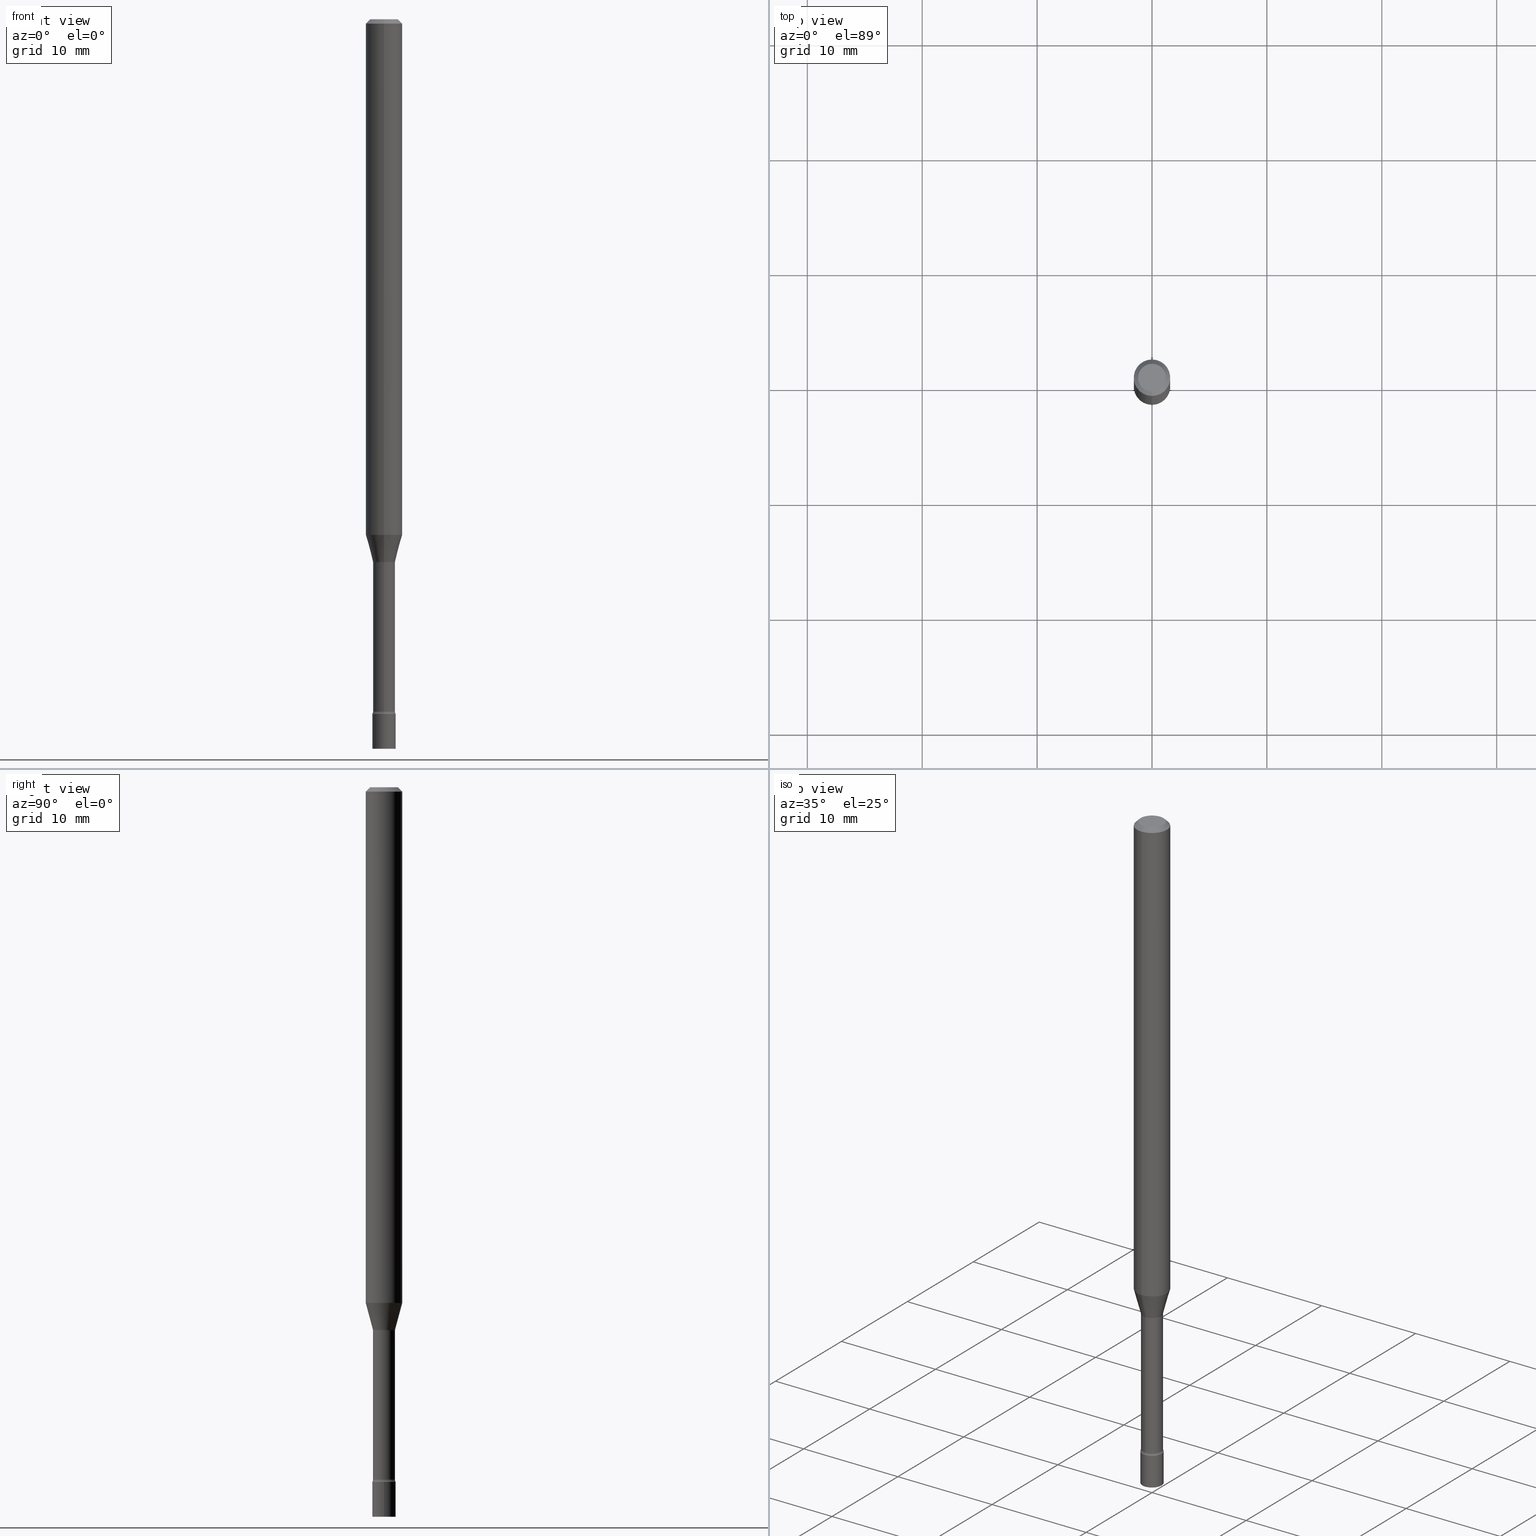
[diagram: canonical four-view strip — front | top / right | iso, engineering-drawing reading convention]
A machine part, canonical four-view strip (front | top / right | iso — engineering-drawing reading convention). The complete STEP part file that produces these views, byte-faithful:
ISO-10303-21;
HEADER;
FILE_DESCRIPTION (( 'STEP AP203' ),
    '1' );
FILE_NAME ('03580.STEP',
    '2024-03-08T21:55:34',
    ( '' ),
    ( '' ),
    'SwSTEP 2.0',
    'SolidWorks 2023',
    '' );
FILE_SCHEMA (( 'CONFIG_CONTROL_DESIGN' ));
ENDSEC;

DATA;
#1 = LINE ( 'NONE', #372, #424 ) ;
#2 = EDGE_LOOP ( 'NONE', ( #496, #222, #340, #302 ) ) ;
#3 = CARTESIAN_POINT ( 'NONE',  ( 2.793185071075117657E-16, 0.03999999999999127864, -2.500000000000000000 ) ) ;
#4 = FACE_OUTER_BOUND ( 'NONE', #57, .T. ) ;
#5 = CIRCLE ( 'NONE', #405, 0.03759999999999999454 ) ;
#6 = APPROVAL_PERSON_ORGANIZATION ( #357, #26, #398 ) ;
#7 = EDGE_CURVE ( 'NONE', #11, #342, #232, .T. ) ;
#8 = ORIENTED_EDGE ( 'NONE', *, *, #13, .T. ) ;
#9 =( NAMED_UNIT ( * ) SI_UNIT ( $, .STERADIAN. ) SOLID_ANGLE_UNIT ( ) );
#10 = LINE ( 'NONE', #103, #482 ) ;
#11 = VERTEX_POINT ( 'NONE', #240 ) ;
#12 = EDGE_LOOP ( 'NONE', ( #263, #463, #186, #416 ) ) ;
#13 = EDGE_CURVE ( 'NONE', #61, #472, #96, .T. ) ;
#14 = CARTESIAN_POINT ( 'NONE',  ( 5.820261104981860964E-29, -8.309660648019649203E-15, -2.379999999999999893 ) ) ;
#15 = VECTOR ( 'NONE', #515, 39.37007874015748143 ) ;
#16 = EDGE_LOOP ( 'NONE', ( #271, #218, #383, #274 ) ) ;
#17 = AXIS2_PLACEMENT_3D ( 'NONE', #3, #206, #364 ) ;
#18 = APPROVAL_STATUS ( 'not_yet_approved' ) ;
#19 = EDGE_CURVE ( 'NONE', #146, #269, #28, .T. ) ;
#20 = ORIENTED_EDGE ( 'NONE', *, *, #233, .T. ) ;
#21 = DIRECTION ( 'NONE',  ( -2.445487859236075809E-29, 3.491454053789768278E-15, 1.000000000000000000 ) ) ;
#22 = VERTEX_POINT ( 'NONE', #112 ) ;
#23 = APPROVAL_ROLE ( '' ) ;
#24 = CARTESIAN_POINT ( 'NONE',  ( 6.113672015462842613E-29, -8.728703347107864943E-15, -2.500000000000000000 ) ) ;
#25 = EDGE_CURVE ( 'NONE', #147, #401, #283, .T. ) ;
#26 = APPROVAL ( #351, 'UNSPECIFIED' ) ;
#27 = PERSON_AND_ORGANIZATION ( #436, #68 ) ;
#28 = CIRCLE ( 'NONE', #390, 0.04000000000000000083 ) ;
#29 = AXIS2_PLACEMENT_3D ( 'NONE', #178, #375, #492 ) ;
#30 = ORIENTED_EDGE ( 'NONE', *, *, #60, .T. ) ;
#31 = CALENDAR_DATE ( 2024, 8, 3 ) ;
#32 = DIRECTION ( 'NONE',  ( -6.982962677686265922E-15, -1.000000000000000000, 3.491454053789768278E-15 ) ) ;
#33 = CARTESIAN_POINT ( 'NONE',  ( 5.820215758720625190E-29, -8.309725586446686731E-15, -2.379999999999999893 ) ) ;
#34 = CYLINDRICAL_SURFACE ( 'NONE', #241, 0.04000000000000000083 ) ;
#35 = PRODUCT_RELATED_PRODUCT_CATEGORY ( 'detail', '', ( #158 ) ) ;
#36 = CARTESIAN_POINT ( 'NONE',  ( 4.321352963174050504E-29, -6.169650470415179361E-15, -1.767071934891535134 ) ) ;
#37 = DATE_TIME_ROLE ( 'classification_date' ) ;
#38 = AXIS2_PLACEMENT_3D ( 'NONE', #414, #459, #418 ) ;
#39 = DIRECTION ( 'NONE',  ( -2.445487859236075809E-29, 3.491454053789768278E-15, 1.000000000000000000 ) ) ;
#40 = AXIS2_PLACEMENT_3D ( 'NONE', #155, #286, #245 ) ;
#41 = CARTESIAN_POINT ( 'NONE',  ( 5.800357778224581997E-29, -8.281244415803181526E-15, -2.371861204020250025 ) ) ;
#42 = DIRECTION ( 'NONE',  ( -2.445487859236075809E-29, 3.491454053789768278E-15, 1.000000000000000000 ) ) ;
#43 = CARTESIAN_POINT ( 'NONE',  ( 4.543942654458362637E-29, -6.487444597681546794E-15, -1.858092501787273143 ) ) ;
#44 = EDGE_CURVE ( 'NONE', #377, #106, #503, .T. ) ;
#45 = ADVANCED_FACE ( 'NONE', ( #156 ), #506, .T. ) ;
#46 = DIRECTION ( 'NONE',  ( 1.000000000000000000, -7.105427357601001070E-15, 4.926315174396549471E-29 ) ) ;
#47 = AXIS2_PLACEMENT_3D ( 'NONE', #404, #335, #203 ) ;
#48 = DIRECTION ( 'NONE',  ( -6.982962677686265922E-15, -1.000000000000000000, 4.370956789862821150E-15 ) ) ;
#49 = DIRECTION ( 'NONE',  ( 6.982962677686265922E-15, 1.000000000000000000, -3.483106191921935554E-15 ) ) ;
#50 = DIRECTION ( 'NONE',  ( -6.982962677686266711E-15, -1.000000000000000000, 0.000000000000000000 ) ) ;
#51 = CARTESIAN_POINT ( 'NONE',  ( 6.113672015462842613E-29, -8.728703347107864943E-15, -2.500000000000000000 ) ) ;
#52 = EDGE_LOOP ( 'NONE', ( #362, #392 ) ) ;
#53 = APPLICATION_PROTOCOL_DEFINITION ( 'international standard', 'config_control_design', 1994, #259 ) ;
#54 = DIRECTION ( 'NONE',  ( -6.982962677686265922E-15, -1.000000000000000000, 3.483106191921935554E-15 ) ) ;
#55 = DIRECTION ( 'NONE',  ( -2.438088387897960049E-29, 3.491481338843145188E-15, 1.000000000000000000 ) ) ;
#56 = LOCAL_TIME ( 16, 55, 34.00000000000000000, #470 ) ;
#57 = EDGE_LOOP ( 'NONE', ( #281, #260, #480, #456 ) ) ;
#58 =( CONVERSION_BASED_UNIT ( 'INCH', #452 ) LENGTH_UNIT ( ) NAMED_UNIT ( #285 ) );
#59 = CARTESIAN_POINT ( 'NONE',  ( 3.574424759935243533E-16, 0.03811111260565749198, -1.858092501787273143 ) ) ;
#60 = EDGE_CURVE ( 'NONE', #313, #11, #190, .T. ) ;
#61 = VERTEX_POINT ( 'NONE', #353 ) ;
#62 = ADVANCED_FACE ( 'NONE', ( #235 ), #277, .F. ) ;
#63 = LINE ( 'NONE', #296, #266 ) ;
#64 = ORIENTED_EDGE ( 'NONE', *, *, #508, .F. ) ;
#65 = DIRECTION ( 'NONE',  ( -6.982962677686265922E-15, -1.000000000000000000, 0.000000000000000000 ) ) ;
#66 = CONICAL_SURFACE ( 'NONE', #276, 0.03811111260566397985, 0.2617993877991495744 ) ;
#67 = EDGE_LOOP ( 'NONE', ( #20, #173 ) ) ;
#68 = ORGANIZATION ( 'UNSPECIFIED', 'UNSPECIFIED', '' ) ;
#69 = APPROVAL_DATE_TIME ( #102, #518 ) ;
#70 = FACE_OUTER_BOUND ( 'NONE', #138, .T. ) ;
#71 = ORIENTED_EDGE ( 'NONE', *, *, #371, .F. ) ;
#72 = PERSON_AND_ORGANIZATION ( #436, #68 ) ;
#73 = ORIENTED_EDGE ( 'NONE', *, *, #212, .T. ) ;
#74 = PERSON_AND_ORGANIZATION_ROLE ( 'design_supplier' ) ;
#75 = DIRECTION ( 'NONE',  ( 1.000000000000000000, -6.982962677686259611E-15, 0.000000000000000000 ) ) ;
#76 = DATE_AND_TIME ( #426, #216 ) ;
#77 = AXIS2_PLACEMENT_3D ( 'NONE', #192, #201, #358 ) ;
#78 = CIRCLE ( 'NONE', #497, 0.03811111260566397985 ) ;
#79 = APPLICATION_CONTEXT ( 'configuration controlled 3d designs of mechanical parts and assemblies' ) ;
#80 = DIRECTION ( 'NONE',  ( -6.982962677686265922E-15, -1.000000000000000000, 3.491454053789768278E-15 ) ) ;
#81 = DIRECTION ( 'NONE',  ( 1.000000000000000000, -6.982962677686259611E-15, 0.000000000000000000 ) ) ;
#82 = UNCERTAINTY_MEASURE_WITH_UNIT (LENGTH_MEASURE( 1.000000000000000082E-05 ), #58, 'distance_accuracy_value', 'NONE');
#83 = EDGE_LOOP ( 'NONE', ( #114, #98 ) ) ;
#84 = AXIS2_PLACEMENT_3D ( 'NONE', #14, #468, #262 ) ;
#85 = DIRECTION ( 'NONE',  ( 2.445487859236075809E-29, -3.491454053789768278E-15, -1.000000000000000000 ) ) ;
#86 = AXIS2_PLACEMENT_3D ( 'NONE', #139, #295, #219 ) ;
#87 = ADVANCED_FACE ( 'NONE', ( #237 ), #34, .T. ) ;
#88 = DIRECTION ( 'NONE',  ( -2.445487859236075809E-29, 3.491454053789768278E-15, 1.000000000000000000 ) ) ;
#89 = EDGE_CURVE ( 'NONE', #159, #122, #197, .T. ) ;
#90 = FACE_OUTER_BOUND ( 'NONE', #12, .T. ) ;
#91 = CIRCLE ( 'NONE', #205, 0.06250000000000000000 ) ;
#92 = AXIS2_PLACEMENT_3D ( 'NONE', #51, #210, #368 ) ;
#93 = DIRECTION ( 'NONE',  ( -2.445487859236075809E-29, 3.491454053789768278E-15, 1.000000000000000000 ) ) ;
#94 = EDGE_CURVE ( 'NONE', #151, #22, #149, .T. ) ;
#95 = CARTESIAN_POINT ( 'NONE',  ( -2.625593966809461641E-16, -0.03760000000000835590, -2.371861204020250025 ) ) ;
#96 = CIRCLE ( 'NONE', #180, 0.03760000000000007780 ) ;
#97 = ORIENTED_EDGE ( 'NONE', *, *, #488, .F. ) ;
#98 = ORIENTED_EDGE ( 'NONE', *, *, #25, .F. ) ;
#99 = PERSON_AND_ORGANIZATION ( #436, #68 ) ;
#100 = CARTESIAN_POINT ( 'NONE',  ( 4.543942654458362637E-29, -6.487444597681546794E-15, -1.858092501787273143 ) ) ;
#101 = ORIENTED_EDGE ( 'NONE', *, *, #60, .F. ) ;
#102 = DATE_AND_TIME ( #306, #198 ) ;
#103 = CARTESIAN_POINT ( 'NONE',  ( -0.04000000000000000083, 2.842170943040400803E-16, -1.967574036101962509E-30 ) ) ;
#104 = CIRCLE ( 'NONE', #38, 0.04749999999999999362 ) ;
#105 = CONICAL_SURFACE ( 'NONE', #225, 0.06250000000000000000, 0.7853981633974483900 ) ;
#106 = VERTEX_POINT ( 'NONE', #204 ) ;
#107 = VECTOR ( 'NONE', #440, 39.37007874015748143 ) ;
#108 = FACE_OUTER_BOUND ( 'NONE', #16, .T. ) ;
#109 = ORIENTED_EDGE ( 'NONE', *, *, #19, .F. ) ;
#110 = DATE_AND_TIME ( #115, #56 ) ;
#111 = CARTESIAN_POINT ( 'NONE',  ( -3.773273898774340269E-16, -0.04749999999999999362, 1.369288605871095774E-16 ) ) ;
#112 = CARTESIAN_POINT ( 'NONE',  ( -2.661284769304047342E-16, -0.03811111260567047465, -1.858092501787273143 ) ) ;
#113 = MANIFOLD_SOLID_BREP ( 'Body-Move/Copy2[1]', #267 ) ;
#114 = ORIENTED_EDGE ( 'NONE', *, *, #395, .F. ) ;
#115 = CALENDAR_DATE ( 2024, 8, 3 ) ;
#116 = AXIS2_PLACEMENT_3D ( 'NONE', #196, #511, #388 ) ;
#117 = CIRCLE ( 'NONE', #29, 0.01500000000000001853 ) ;
#118 = EDGE_LOOP ( 'NONE', ( #238, #256, #135, #109 ) ) ;
#119 = EDGE_CURVE ( 'NONE', #472, #106, #366, .T. ) ;
#120 = APPROVAL_DATE_TIME ( #475, #26 ) ;
#121 = DIRECTION ( 'NONE',  ( -6.982962677686266711E-15, -1.000000000000000000, 0.000000000000000000 ) ) ;
#122 = VERTEX_POINT ( 'NONE', #451 ) ;
#123 = CYLINDRICAL_SURFACE ( 'NONE', #249, 0.06250000000000000000 ) ;
#124 = CARTESIAN_POINT ( 'NONE',  ( 5.820215758720625190E-29, -8.309725586446686731E-15, -2.379999999999999893 ) ) ;
#125 = CYLINDRICAL_SURFACE ( 'NONE', #300, 0.03760000000000003617 ) ;
#126 = TOROIDAL_SURFACE ( 'NONE', #391, 0.05260000000000007031, 0.01499999999999998904 ) ;
#127 = EDGE_CURVE ( 'NONE', #151, #159, #373, .T. ) ;
#128 = ADVANCED_FACE ( 'NONE', ( #255 ), #427, .T. ) ;
#129 = LINE ( 'NONE', #338, #412 ) ;
#130 = CARTESIAN_POINT ( 'NONE',  ( 3.840629472727447874E-16, 0.04749999999999999362, -1.947592745229184119E-16 ) ) ;
#131 = CC_DESIGN_PERSON_AND_ORGANIZATION_ASSIGNMENT ( #72, #435, ( #442 ) ) ;
#132 = CARTESIAN_POINT ( 'NONE',  ( 5.800357778224581997E-29, -8.281244415803181526E-15, -2.371861204020250025 ) ) ;
#133 = AXIS2_PLACEMENT_3D ( 'NONE', #137, #21, #185 ) ;
#134 = CARTESIAN_POINT ( 'NONE',  ( 2.671640686457979269E-16, 0.03760000000000003617, -1.312786724224954295E-16 ) ) ;
#135 = ORIENTED_EDGE ( 'NONE', *, *, #415, .T. ) ;
#136 = DIRECTION ( 'NONE',  ( 1.000000000000000000, -6.982962677686259611E-15, 0.000000000000000000 ) ) ;
#137 = CARTESIAN_POINT ( 'NONE',  ( 0.000000000000000000, 0.000000000000000000, 0.000000000000000000 ) ) ;
#138 = EDGE_LOOP ( 'NONE', ( #363, #184, #348, #101 ) ) ;
#139 = CARTESIAN_POINT ( 'NONE',  ( 4.321352963174050504E-29, -6.169650470415179361E-15, -1.767071934891535134 ) ) ;
#140 = FACE_OUTER_BOUND ( 'NONE', #379, .T. ) ;
#141 = DIRECTION ( 'NONE',  ( 1.839019923739595582E-15, 0.2588190451025242922, 0.9659258262890673130 ) ) ;
#142 =( GEOMETRIC_REPRESENTATION_CONTEXT ( 3 ) GLOBAL_UNCERTAINTY_ASSIGNED_CONTEXT ( ( #82 ) ) GLOBAL_UNIT_ASSIGNED_CONTEXT ( ( #58, #461, #9 ) ) REPRESENTATION_CONTEXT ( 'NONE', 'WORKASPACE' ) );
#143 = CC_DESIGN_SECURITY_CLASSIFICATION ( #442, ( #334 ) ) ;
#144 = ORIENTED_EDGE ( 'NONE', *, *, #458, .F. ) ;
#145 = PERSON_AND_ORGANIZATION ( #436, #68 ) ;
#146 = VERTEX_POINT ( 'NONE', #307 ) ;
#147 = VERTEX_POINT ( 'NONE', #258 ) ;
#148 = DIRECTION ( 'NONE',  ( 7.105427357601001859E-15, 1.000000000000000000, 0.000000000000000000 ) ) ;
#149 = CIRCLE ( 'NONE', #318, 0.03811111260566397985 ) ;
#150 = CC_DESIGN_APPROVAL ( #26, ( #334 ) ) ;
#151 = VERTEX_POINT ( 'NONE', #59 ) ;
#152 = CARTESIAN_POINT ( 'NONE',  ( 0.000000000000000000, 0.000000000000000000, 0.000000000000000000 ) ) ;
#153 = EDGE_CURVE ( 'NONE', #297, #380, #5, .T. ) ;
#154 = DIRECTION ( 'NONE',  ( -2.445468806185136597E-29, 3.491481338843145583E-15, 1.000000000000000000 ) ) ;
#155 = CARTESIAN_POINT ( 'NONE',  ( 3.316907271900976096E-16, 0.04749999999999999362, -1.803016710389662094E-16 ) ) ;
#156 = FACE_OUTER_BOUND ( 'NONE', #2, .T. ) ;
#157 = ORIENTED_EDGE ( 'NONE', *, *, #89, .T. ) ;
#158 = PRODUCT ( '03580', '03580', '', ( #257 ) ) ;
#159 = VERTEX_POINT ( 'NONE', #376 ) ;
#160 = EDGE_CURVE ( 'NONE', #147, #146, #10, .T. ) ;
#161 = DIRECTION ( 'NONE',  ( -2.445487859236075809E-29, 3.491454053789768278E-15, 1.000000000000000000 ) ) ;
#162 = PRODUCT_DEFINITION_SHAPE ( 'NONE', 'NONE',  #326 ) ;
#163 = CARTESIAN_POINT ( 'NONE',  ( 2.707957421369426539E-16, 0.03811111260565749198, -1.858092501787273143 ) ) ;
#164 = DIRECTION ( 'NONE',  ( -2.445487859236075809E-29, 3.491454053789768278E-15, 1.000000000000000000 ) ) ;
#165 = CARTESIAN_POINT ( 'NONE',  ( 7.071178758730867700E-46, -1.009561165842601040E-31, -2.891520696790443572E-17 ) ) ;
#166 = DIRECTION ( 'NONE',  ( -2.445487859236075809E-29, 3.491454053789768278E-15, 1.000000000000000000 ) ) ;
#167 = CYLINDRICAL_SURFACE ( 'NONE', #47, 0.03760000000000003617 ) ;
#168 = TOROIDAL_SURFACE ( 'NONE', #361, 0.05260000000000000092, 0.01500000000000002373 ) ;
#169 = AXIS2_PLACEMENT_3D ( 'NONE', #323, #229, #121 ) ;
#170 = EDGE_CURVE ( 'NONE', #342, #11, #91, .T. ) ;
#171 = PERSON_AND_ORGANIZATION_ROLE ( 'design_owner' ) ;
#172 = DIRECTION ( 'NONE',  ( -6.982962677686266711E-15, -1.000000000000000000, 0.000000000000000000 ) ) ;
#173 = ORIENTED_EDGE ( 'NONE', *, *, #278, .T. ) ;
#174 = EDGE_CURVE ( 'NONE', #106, #377, #360, .T. ) ;
#175 = DIRECTION ( 'NONE',  ( 1.000000000000000000, 0.000000000000000000, 0.000000000000000000 ) ) ;
#176 = CARTESIAN_POINT ( 'NONE',  ( 4.440892098500625669E-16, 0.06250000000000000000, -2.182158783618605173E-16 ) ) ;
#177 = ORIENTED_EDGE ( 'NONE', *, *, #453, .T. ) ;
#178 = CARTESIAN_POINT ( 'NONE',  ( -3.673038368462520569E-16, -0.05260000000000650267, -1.861974787463810843 ) ) ;
#179 = CARTESIAN_POINT ( 'NONE',  ( 3.668231788854121000E-31, -5.237181080684662746E-17, -0.01500000000000003067 ) ) ;
#180 = AXIS2_PLACEMENT_3D ( 'NONE', #41, #324, #431 ) ;
#181 = CIRCLE ( 'NONE', #400, 0.01500000000000001853 ) ;
#182 = ORIENTED_EDGE ( 'NONE', *, *, #308, .F. ) ;
#183 = APPROVAL_ROLE ( '' ) ;
#184 = ORIENTED_EDGE ( 'NONE', *, *, #479, .T. ) ;
#185 = DIRECTION ( 'NONE',  ( -6.982962677686265922E-15, -1.000000000000000000, 3.491454053789768278E-15 ) ) ;
#186 = ORIENTED_EDGE ( 'NONE', *, *, #448, .F. ) ;
#187 = CARTESIAN_POINT ( 'NONE',  ( 4.553401260645949734E-29, -6.501050223826328957E-15, -1.861974787463811065 ) ) ;
#188 = AXIS2_PLACEMENT_3D ( 'NONE', #33, #55, #211 ) ;
#189 = CIRCLE ( 'NONE', #520, 0.03759999999999999454 ) ;
#190 = LINE ( 'NONE', #476, #15 ) ;
#191 = CC_DESIGN_DATE_AND_TIME_ASSIGNMENT ( #438, #37, ( #442 ) ) ;
#192 = CARTESIAN_POINT ( 'NONE',  ( 5.820261104981860964E-29, -8.309660648019649203E-15, -2.379999999999999893 ) ) ;
#193 = ADVANCED_FACE ( 'NONE', ( #70 ), #447, .T. ) ;
#194 = DIRECTION ( 'NONE',  ( -2.445468806185136597E-29, 3.491481338843145583E-15, 1.000000000000000000 ) ) ;
#195 = PLANE ( 'NONE',  #40 ) ;
#196 = CARTESIAN_POINT ( 'NONE',  ( 3.668231788854121000E-31, -5.237181080684662746E-17, -0.01500000000000003067 ) ) ;
#197 = CIRCLE ( 'NONE', #519, 0.06250000000000000000 ) ;
#198 = LOCAL_TIME ( 16, 55, 34.00000000000000000, #347 ) ;
#199 = ADVANCED_FACE ( 'NONE', ( #108 ), #66, .T. ) ;
#200 = EDGE_CURVE ( 'NONE', #159, #11, #339, .T. ) ;
#201 = DIRECTION ( 'NONE',  ( -2.445487859236075809E-29, 3.491454053789768278E-15, 1.000000000000000000 ) ) ;
#202 = CARTESIAN_POINT ( 'NONE',  ( 2.842170943040982095E-16, 0.03999999999999168804, -2.380000000000000338 ) ) ;
#203 = DIRECTION ( 'NONE',  ( -6.982962677686267499E-15, -1.000000000000000000, 3.491454053789768672E-15 ) ) ;
#204 = CARTESIAN_POINT ( 'NONE',  ( -2.793185071073924012E-16, -0.04000000000000829975, -2.379999999999999893 ) ) ;
#205 = AXIS2_PLACEMENT_3D ( 'NONE', #179, #378, #54 ) ;
#206 = DIRECTION ( 'NONE',  ( 2.438088387897960049E-29, -3.491481338843145188E-15, -1.000000000000000000 ) ) ;
#207 = APPROVAL_PERSON_ORGANIZATION ( #99, #518, #183 ) ;
#208 = DIRECTION ( 'NONE',  ( -6.982962677686267499E-15, -1.000000000000000000, 3.491454053789768672E-15 ) ) ;
#209 = ADVANCED_FACE ( 'NONE', ( #140 ), #493, .T. ) ;
#210 = DIRECTION ( 'NONE',  ( -2.445468806185136597E-29, 3.491481338843145583E-15, 1.000000000000000000 ) ) ;
#211 = DIRECTION ( 'NONE',  ( 1.000000000000000000, -6.982962677686265922E-15, 4.876176775795935793E-29 ) ) ;
#212 = EDGE_CURVE ( 'NONE', #61, #377, #512, .T. ) ;
#213 = ORIENTED_EDGE ( 'NONE', *, *, #94, .F. ) ;
#214 = DIRECTION ( 'NONE',  ( -2.445468806185136877E-29, 3.491481338843145188E-15, 1.000000000000000000 ) ) ;
#215 = AXIS2_PLACEMENT_3D ( 'NONE', #24, #154, #81 ) ;
#216 = LOCAL_TIME ( 16, 55, 34.00000000000000000, #236 ) ;
#217 = EDGE_CURVE ( 'NONE', #22, #122, #63, .T. ) ;
#218 = ORIENTED_EDGE ( 'NONE', *, *, #94, .T. ) ;
#219 = DIRECTION ( 'NONE',  ( -6.982962677686265922E-15, -1.000000000000000000, 4.370956789862821150E-15 ) ) ;
#220 = CARTESIAN_POINT ( 'NONE',  ( 4.553436736946422852E-29, -6.500999419744866443E-15, -1.861974787463811065 ) ) ;
#221 = EDGE_LOOP ( 'NONE', ( #355, #73, #469, #465 ) ) ;
#222 = ORIENTED_EDGE ( 'NONE', *, *, #160, .T. ) ;
#223 = DIRECTION ( 'NONE',  ( 6.982962677686265922E-15, 1.000000000000000000, -3.483106191921935554E-15 ) ) ;
#224 = VECTOR ( 'NONE', #341, 39.37007874015748143 ) ;
#225 = AXIS2_PLACEMENT_3D ( 'NONE', #402, #85, #49 ) ;
#226 = ORIENTED_EDGE ( 'NONE', *, *, #217, .F. ) ;
#227 = CARTESIAN_POINT ( 'NONE',  ( -4.287811248607203282E-16, -0.06250000000000005551, -0.01499999999999981209 ) ) ;
#228 = ORIENTED_EDGE ( 'NONE', *, *, #479, .F. ) ;
#229 = DIRECTION ( 'NONE',  ( -2.445487859236075809E-29, 3.491454053789768278E-15, 1.000000000000000000 ) ) ;
#230 = ORIENTED_EDGE ( 'NONE', *, *, #19, .T. ) ;
#231 = SHAPE_DEFINITION_REPRESENTATION ( #162, #346 ) ;
#232 = CIRCLE ( 'NONE', #116, 0.06250000000000000000 ) ;
#233 = EDGE_CURVE ( 'NONE', #313, #252, #104, .T. ) ;
#234 = AXIS2_PLACEMENT_3D ( 'NONE', #303, #499, #136 ) ;
#235 = FACE_OUTER_BOUND ( 'NONE', #52, .T. ) ;
#236 = COORDINATED_UNIVERSAL_TIME_OFFSET ( 5, 0, .BEHIND. ) ;
#237 = FACE_OUTER_BOUND ( 'NONE', #118, .T. ) ;
#238 = ORIENTED_EDGE ( 'NONE', *, *, #160, .F. ) ;
#239 = PERSON_AND_ORGANIZATION_ROLE ( 'creator' ) ;
#240 = CARTESIAN_POINT ( 'NONE',  ( 4.440892098501060035E-16, 0.06249999999999995143, -0.01500000000000024751 ) ) ;
#241 = AXIS2_PLACEMENT_3D ( 'NONE', #279, #194, #396 ) ;
#242 = TOROIDAL_SURFACE ( 'NONE', #291, 0.05260000000000000092, 0.01500000000000002373 ) ;
#243 = ADVANCED_FACE ( 'NONE', ( #473 ), #168, .F. ) ;
#244 = PLANE ( 'NONE',  #17 ) ;
#245 = DIRECTION ( 'NONE',  ( 6.982962677686265922E-15, 1.000000000000000000, -3.491454053789768278E-15 ) ) ;
#246 = ADVANCED_FACE ( 'NONE', ( #275 ), #483, .T. ) ;
#247 = CARTESIAN_POINT ( 'NONE',  ( -2.625593966809580464E-16, -0.03760000000000649628, -1.861974787463811065 ) ) ;
#248 = DIRECTION ( 'NONE',  ( 7.105427357601001859E-15, 1.000000000000000000, 0.000000000000000000 ) ) ;
#249 = AXIS2_PLACEMENT_3D ( 'NONE', #370, #166, #330 ) ;
#250 = DIRECTION ( 'NONE',  ( -2.445487859236075809E-29, 3.491454053789768278E-15, 1.000000000000000000 ) ) ;
#251 = CARTESIAN_POINT ( 'NONE',  ( 0.000000000000000000, 0.000000000000000000, 0.000000000000000000 ) ) ;
#252 = VERTEX_POINT ( 'NONE', #111 ) ;
#253 = LINE ( 'NONE', #134, #367 ) ;
#254 = AXIS2_PLACEMENT_3D ( 'NONE', #165, #161, #288 ) ;
#255 = FACE_OUTER_BOUND ( 'NONE', #345, .T. ) ;
#256 = ORIENTED_EDGE ( 'NONE', *, *, #25, .T. ) ;
#257 = MECHANICAL_CONTEXT ( 'NONE', #79, 'mechanical' ) ;
#258 = CARTESIAN_POINT ( 'NONE',  ( -0.04000000000000000083, -8.234997372473236299E-15, -2.500000000000000000 ) ) ;
#259 = APPLICATION_CONTEXT ( 'configuration controlled 3d designs of mechanical parts and assemblies' ) ;
#260 = ORIENTED_EDGE ( 'NONE', *, *, #304, .F. ) ;
#261 = LINE ( 'NONE', #227, #344 ) ;
#262 = DIRECTION ( 'NONE',  ( -6.982962677686265922E-15, -1.000000000000000000, 6.829619984160658243E-15 ) ) ;
#263 = ORIENTED_EDGE ( 'NONE', *, *, #304, .T. ) ;
#264 = CARTESIAN_POINT ( 'NONE',  ( 4.553401260645949734E-29, -6.501050223826328957E-15, -1.861974787463811065 ) ) ;
#265 = DIRECTION ( 'NONE',  ( -2.445468806185136877E-29, 3.491481338843145188E-15, 1.000000000000000000 ) ) ;
#266 = VECTOR ( 'NONE', #455, 39.37007874015748854 ) ;
#267 = CLOSED_SHELL ( 'NONE', ( #45, #128, #87, #356 ) ) ;
#268 = TOROIDAL_SURFACE ( 'NONE', #319, 0.05260000000000007031, 0.01499999999999998904 ) ;
#269 = VERTEX_POINT ( 'NONE', #272 ) ;
#270 = ADVANCED_FACE ( 'NONE', ( #429 ), #195, .F. ) ;
#271 = ORIENTED_EDGE ( 'NONE', *, *, #127, .F. ) ;
#272 = CARTESIAN_POINT ( 'NONE',  ( 0.04000000000000000083, -8.589044093554136769E-15, -2.379999999999999893 ) ) ;
#273 = ADVANCED_FACE ( 'NONE', ( #485 ), #105, .T. ) ;
#274 = ORIENTED_EDGE ( 'NONE', *, *, #89, .F. ) ;
#275 = FACE_OUTER_BOUND ( 'NONE', #419, .T. ) ;
#276 = AXIS2_PLACEMENT_3D ( 'NONE', #100, #299, #172 ) ;
#277 = PLANE ( 'NONE',  #433 ) ;
#278 = EDGE_CURVE ( 'NONE', #252, #313, #467, .T. ) ;
#279 = CARTESIAN_POINT ( 'NONE',  ( 0.000000000000000000, 0.000000000000000000, 0.000000000000000000 ) ) ;
#280 = CC_DESIGN_PERSON_AND_ORGANIZATION_ASSIGNMENT ( #310, #74, ( #334 ) ) ;
#281 = ORIENTED_EDGE ( 'NONE', *, *, #212, .F. ) ;
#282 = CARTESIAN_POINT ( 'NONE',  ( -4.364351673553912750E-16, -0.06250000000000005551, -0.01499999999999981209 ) ) ;
#283 = CIRCLE ( 'NONE', #215, 0.04000000000000000083 ) ;
#284 = APPROVAL_PERSON_ORGANIZATION ( #387, #430, #23 ) ;
#285 = DIMENSIONAL_EXPONENTS ( 1.000000000000000000, 0.000000000000000000, 0.000000000000000000, 0.000000000000000000, 0.000000000000000000, 0.000000000000000000, 0.000000000000000000 ) ;
#286 = DIRECTION ( 'NONE',  ( 2.445487859236075529E-29, -3.491454053789768278E-15, -1.000000000000000000 ) ) ;
#287 = MANIFOLD_SOLID_BREP ( 'Body-Move/Copy2[2]', #466 ) ;
#288 = DIRECTION ( 'NONE',  ( -6.982962677686266711E-15, -1.000000000000000000, 3.491454053789768672E-15 ) ) ;
#289 = CARTESIAN_POINT ( 'NONE',  ( 4.543942654458362637E-29, -6.487444597681546794E-15, -1.858092501787273143 ) ) ;
#290 = FACE_OUTER_BOUND ( 'NONE', #221, .T. ) ;
#291 = AXIS2_PLACEMENT_3D ( 'NONE', #264, #298, #384 ) ;
#292 = PERSON_AND_ORGANIZATION ( #436, #68 ) ;
#293 = ADVANCED_FACE ( 'NONE', ( #90 ), #125, .T. ) ;
#294 = ORIENTED_EDGE ( 'NONE', *, *, #200, .T. ) ;
#295 = DIRECTION ( 'NONE',  ( -2.445487859236075809E-29, 3.491454053789768278E-15, 1.000000000000000000 ) ) ;
#296 = CARTESIAN_POINT ( 'NONE',  ( -2.661284769304047342E-16, -0.03811111260567047465, -1.858092501787273143 ) ) ;
#297 = VERTEX_POINT ( 'NONE', #517 ) ;
#298 = DIRECTION ( 'NONE',  ( -2.445487859236075809E-29, 3.491454053789768278E-15, 1.000000000000000000 ) ) ;
#299 = DIRECTION ( 'NONE',  ( -2.445487859236075809E-29, 3.491454053789768278E-15, 1.000000000000000000 ) ) ;
#300 = AXIS2_PLACEMENT_3D ( 'NONE', #251, #93, #208 ) ;
#301 = ADVANCED_FACE ( 'NONE', ( #408 ), #123, .T. ) ;
#302 = ORIENTED_EDGE ( 'NONE', *, *, #415, .F. ) ;
#303 = CARTESIAN_POINT ( 'NONE',  ( 5.820215758720625190E-29, -8.309725586446686731E-15, -2.379999999999999893 ) ) ;
#304 = EDGE_CURVE ( 'NONE', #472, #61, #406, .T. ) ;
#305 = ORIENTED_EDGE ( 'NONE', *, *, #308, .T. ) ;
#306 = CALENDAR_DATE ( 2024, 8, 3 ) ;
#307 = CARTESIAN_POINT ( 'NONE',  ( -0.04000000000000000083, -8.234997372473236299E-15, -2.379999999999999893 ) ) ;
#308 = EDGE_CURVE ( 'NONE', #151, #297, #181, .T. ) ;
#309 = ORIENTED_EDGE ( 'NONE', *, *, #7, .F. ) ;
#310 = PERSON_AND_ORGANIZATION ( #436, #68 ) ;
#311 = AXIS2_PLACEMENT_3D ( 'NONE', #152, #320, #315 ) ;
#312 = LOCAL_TIME ( 16, 55, 34.00000000000000000, #510 ) ;
#313 = VERTEX_POINT ( 'NONE', #130 ) ;
#314 = COORDINATED_UNIVERSAL_TIME_OFFSET ( 5, 0, .BEHIND. ) ;
#315 = DIRECTION ( 'NONE',  ( 1.000000000000000000, -6.982962677686265922E-15, 4.876176775795935793E-29 ) ) ;
#316 = CALENDAR_DATE ( 2024, 8, 3 ) ;
#317 = ORIENTED_EDGE ( 'NONE', *, *, #7, .T. ) ;
#318 = AXIS2_PLACEMENT_3D ( 'NONE', #289, #250, #50 ) ;
#319 = AXIS2_PLACEMENT_3D ( 'NONE', #450, #365, #446 ) ;
#320 = DIRECTION ( 'NONE',  ( -2.445468806185136597E-29, 3.491481338843145583E-15, 1.000000000000000000 ) ) ;
#321 = CC_DESIGN_APPROVAL ( #430, ( #442 ) ) ;
#322 = DIRECTION ( 'NONE',  ( -2.445468806185136597E-29, 3.491481338843145583E-15, 1.000000000000000000 ) ) ;
#323 = CARTESIAN_POINT ( 'NONE',  ( 4.543942654458362637E-29, -6.487444597681546794E-15, -1.858092501787273143 ) ) ;
#324 = DIRECTION ( 'NONE',  ( -2.445487859236075809E-29, 3.491454053789768278E-15, 1.000000000000000000 ) ) ;
#325 = DIRECTION ( 'NONE',  ( -6.982962677686266711E-15, -1.000000000000000000, 0.000000000000000000 ) ) ;
#326 = PRODUCT_DEFINITION ( 'UNKNOWN', '', #334, #333 ) ;
#327 = CIRCLE ( 'NONE', #86, 0.06250000000000000000 ) ;
#328 = CARTESIAN_POINT ( 'NONE',  ( -2.625593966810038989E-16, -0.03760000000000003617, 1.312786724224954295E-16 ) ) ;
#329 = ADVANCED_FACE ( 'NONE', ( #407 ), #167, .T. ) ;
#330 = DIRECTION ( 'NONE',  ( -6.982962677686265922E-15, -1.000000000000000000, 3.491454053789768278E-15 ) ) ;
#331 = CARTESIAN_POINT ( 'NONE',  ( -3.673038368462400761E-16, -0.05260000000000834841, -2.371861204020249581 ) ) ;
#332 = LINE ( 'NONE', #328, #107 ) ;
#333 = DESIGN_CONTEXT ( 'detailed design', #259, 'design' ) ;
#334 = PRODUCT_DEFINITION_FORMATION_WITH_SPECIFIED_SOURCE ( 'ANY', '', #158, .NOT_KNOWN. ) ;
#335 = DIRECTION ( 'NONE',  ( -2.445487859236075809E-29, 3.491454053789768278E-15, 1.000000000000000000 ) ) ;
#336 = AXIS2_PLACEMENT_3D ( 'NONE', #132, #443, #403 ) ;
#337 = ORIENTED_EDGE ( 'NONE', *, *, #200, .F. ) ;
#338 = CARTESIAN_POINT ( 'NONE',  ( 0.04000000000000000083, -2.793185071074506290E-16, 1.950470710318374387E-30 ) ) ;
#339 = LINE ( 'NONE', #176, #224 ) ;
#340 = ORIENTED_EDGE ( 'NONE', *, *, #453, .F. ) ;
#341 = DIRECTION ( 'NONE',  ( -2.445487859236075809E-29, 3.491454053789768278E-15, 1.000000000000000000 ) ) ;
#342 = VERTEX_POINT ( 'NONE', #282 ) ;
#343 = CARTESIAN_POINT ( 'NONE',  ( 3.668231788854121000E-31, -5.237181080684662746E-17, -0.01500000000000003067 ) ) ;
#344 = VECTOR ( 'NONE', #420, 39.37007874015748143 ) ;
#345 = EDGE_LOOP ( 'NONE', ( #177, #230 ) ) ;
#346 = ADVANCED_BREP_SHAPE_REPRESENTATION ( '03580', ( #113, #287, #449 ), #142 ) ;
#347 = COORDINATED_UNIVERSAL_TIME_OFFSET ( 5, 0, .BEHIND. ) ;
#348 = ORIENTED_EDGE ( 'NONE', *, *, #170, .T. ) ;
#349 = CARTESIAN_POINT ( 'NONE',  ( 3.737454790098710800E-16, 0.05259999999999178527, -2.371861204020250025 ) ) ;
#350 = ORIENTED_EDGE ( 'NONE', *, *, #397, .F. ) ;
#351 = APPROVAL_STATUS ( 'not_yet_approved' ) ;
#352 = VECTOR ( 'NONE', #141, 39.37007874015748854 ) ;
#353 = CARTESIAN_POINT ( 'NONE',  ( 2.756905814749771574E-16, 0.03759999999999179970, -2.371861204020250025 ) ) ;
#354 = APPROVAL_DATE_TIME ( #110, #430 ) ;
#355 = ORIENTED_EDGE ( 'NONE', *, *, #13, .F. ) ;
#356 = ADVANCED_FACE ( 'NONE', ( #444 ), #244, .T. ) ;
#357 = PERSON_AND_ORGANIZATION ( #436, #68 ) ;
#358 = DIRECTION ( 'NONE',  ( -6.982962677686265922E-15, -1.000000000000000000, 6.829619984160658243E-15 ) ) ;
#359 = EDGE_CURVE ( 'NONE', #472, #380, #332, .T. ) ;
#360 = CIRCLE ( 'NONE', #84, 0.04000000000000000083 ) ;
#361 = AXIS2_PLACEMENT_3D ( 'NONE', #187, #39, #32 ) ;
#362 = ORIENTED_EDGE ( 'NONE', *, *, #174, .F. ) ;
#363 = ORIENTED_EDGE ( 'NONE', *, *, #278, .F. ) ;
#364 = DIRECTION ( 'NONE',  ( -1.000000000000000000, 6.982962677686265922E-15, -4.876176775795935793E-29 ) ) ;
#365 = DIRECTION ( 'NONE',  ( -2.445487859236075809E-29, 3.491454053789768278E-15, 1.000000000000000000 ) ) ;
#366 = CIRCLE ( 'NONE', #411, 0.01499999999999998557 ) ;
#367 = VECTOR ( 'NONE', #413, 39.37007874015748143 ) ;
#368 = DIRECTION ( 'NONE',  ( 1.000000000000000000, -6.982962677686259611E-15, 0.000000000000000000 ) ) ;
#369 = ORIENTED_EDGE ( 'NONE', *, *, #458, .T. ) ;
#370 = CARTESIAN_POINT ( 'NONE',  ( 0.000000000000000000, 0.000000000000000000, 0.000000000000000000 ) ) ;
#371 = EDGE_CURVE ( 'NONE', #22, #151, #78, .T. ) ;
#372 = CARTESIAN_POINT ( 'NONE',  ( -4.364351673553916201E-16, -0.06250000000000000000, 2.182158783618605173E-16 ) ) ;
#373 = LINE ( 'NONE', #163, #352 ) ;
#374 = CIRCLE ( 'NONE', #234, 0.04000000000000000083 ) ;
#375 = DIRECTION ( 'NONE',  ( -1.000000000000000000, 6.982962677686265922E-15, -4.883557194083112340E-29 ) ) ;
#376 = CARTESIAN_POINT ( 'NONE',  ( 4.440892098501054119E-16, 0.06249999999999378969, -1.767071934891535356 ) ) ;
#377 = VERTEX_POINT ( 'NONE', #202 ) ;
#378 = DIRECTION ( 'NONE',  ( -2.445487859236075809E-29, 3.491454053789768278E-15, 1.000000000000000000 ) ) ;
#379 = EDGE_LOOP ( 'NONE', ( #337, #157, #509, #309 ) ) ;
#380 = VERTEX_POINT ( 'NONE', #247 ) ;
#381 = CARTESIAN_POINT ( 'NONE',  ( 0.000000000000000000, 0.000000000000000000, 0.000000000000000000 ) ) ;
#382 = AXIS2_PLACEMENT_3D ( 'NONE', #343, #421, #223 ) ;
#383 = ORIENTED_EDGE ( 'NONE', *, *, #217, .T. ) ;
#384 = DIRECTION ( 'NONE',  ( -6.982962677686265922E-15, -1.000000000000000000, 3.491454053789768278E-15 ) ) ;
#385 = CC_DESIGN_PERSON_AND_ORGANIZATION_ASSIGNMENT ( #145, #171, ( #158 ) ) ;
#386 = ORIENTED_EDGE ( 'NONE', *, *, #153, .F. ) ;
#387 = PERSON_AND_ORGANIZATION ( #436, #68 ) ;
#388 = DIRECTION ( 'NONE',  ( -6.982962677686265922E-15, -1.000000000000000000, 3.483106191921935554E-15 ) ) ;
#389 = ADVANCED_FACE ( 'NONE', ( #290 ), #268, .F. ) ;
#390 = AXIS2_PLACEMENT_3D ( 'NONE', #124, #322, #75 ) ;
#391 = AXIS2_PLACEMENT_3D ( 'NONE', #481, #164, #484 ) ;
#392 = ORIENTED_EDGE ( 'NONE', *, *, #44, .F. ) ;
#393 = DATE_TIME_ROLE ( 'creation_date' ) ;
#394 = CARTESIAN_POINT ( 'NONE',  ( 2.793185071075088075E-16, 0.03999999999999169498, -2.380000000000000338 ) ) ;
#395 = EDGE_CURVE ( 'NONE', #401, #147, #513, .T. ) ;
#396 = DIRECTION ( 'NONE',  ( 1.000000000000000000, -6.982962677686265922E-15, 4.876176775795935793E-29 ) ) ;
#397 = EDGE_CURVE ( 'NONE', #122, #342, #1, .T. ) ;
#398 = APPROVAL_ROLE ( '' ) ;
#399 = ADVANCED_FACE ( 'NONE', ( #4 ), #126, .F. ) ;
#400 = AXIS2_PLACEMENT_3D ( 'NONE', #487, #46, #248 ) ;
#401 = VERTEX_POINT ( 'NONE', #516 ) ;
#402 = CARTESIAN_POINT ( 'NONE',  ( 3.668231788854121000E-31, -5.237181080684662746E-17, -0.01500000000000003067 ) ) ;
#403 = DIRECTION ( 'NONE',  ( -6.982962677686265922E-15, -1.000000000000000000, 0.000000000000000000 ) ) ;
#404 = CARTESIAN_POINT ( 'NONE',  ( 0.000000000000000000, 0.000000000000000000, 0.000000000000000000 ) ) ;
#405 = AXIS2_PLACEMENT_3D ( 'NONE', #220, #495, #462 ) ;
#406 = CIRCLE ( 'NONE', #336, 0.03760000000000007780 ) ;
#407 = FACE_OUTER_BOUND ( 'NONE', #409, .T. ) ;
#408 = FACE_OUTER_BOUND ( 'NONE', #474, .T. ) ;
#409 = EDGE_LOOP ( 'NONE', ( #64, #8, #502, #386 ) ) ;
#410 = APPLICATION_PROTOCOL_DEFINITION ( 'international standard', 'config_control_design', 1994, #79 ) ;
#411 = AXIS2_PLACEMENT_3D ( 'NONE', #331, #445, #489 ) ;
#412 = VECTOR ( 'NONE', #214, 39.37007874015748143 ) ;
#413 = DIRECTION ( 'NONE',  ( -2.445487859236075809E-29, 3.491454053789768278E-15, 1.000000000000000000 ) ) ;
#414 = CARTESIAN_POINT ( 'NONE',  ( 7.071178758730867700E-46, -1.009561165842601040E-31, -2.891520696790443572E-17 ) ) ;
#415 = EDGE_CURVE ( 'NONE', #401, #269, #129, .T. ) ;
#416 = ORIENTED_EDGE ( 'NONE', *, *, #359, .F. ) ;
#417 = DIRECTION ( 'NONE',  ( 0.000000000000000000, 0.000000000000000000, 1.000000000000000000 ) ) ;
#418 = DIRECTION ( 'NONE',  ( -6.982962677686266711E-15, -1.000000000000000000, 3.491454053789768672E-15 ) ) ;
#419 = EDGE_LOOP ( 'NONE', ( #460, #425, #97, #226 ) ) ;
#420 = DIRECTION ( 'NONE',  ( -4.851104656540964275E-15, -0.7071067811865500152, -0.7071067811865450192 ) ) ;
#421 = DIRECTION ( 'NONE',  ( 2.445487859236075809E-29, -3.491454053789768278E-15, -1.000000000000000000 ) ) ;
#422 = ORIENTED_EDGE ( 'NONE', *, *, #233, .F. ) ;
#423 = AXIS2_PLACEMENT_3D ( 'NONE', #349, #501, #148 ) ;
#424 = VECTOR ( 'NONE', #88, 39.37007874015748143 ) ;
#425 = ORIENTED_EDGE ( 'NONE', *, *, #127, .T. ) ;
#426 = CALENDAR_DATE ( 2024, 8, 3 ) ;
#427 = PLANE ( 'NONE',  #188 ) ;
#428 = ORIENTED_EDGE ( 'NONE', *, *, #488, .T. ) ;
#429 = FACE_OUTER_BOUND ( 'NONE', #67, .T. ) ;
#430 = APPROVAL ( #432, 'UNSPECIFIED' ) ;
#431 = DIRECTION ( 'NONE',  ( -6.982962677686265922E-15, -1.000000000000000000, 0.000000000000000000 ) ) ;
#432 = APPROVAL_STATUS ( 'not_yet_approved' ) ;
#433 = AXIS2_PLACEMENT_3D ( 'NONE', #394, #434, #80 ) ;
#434 = DIRECTION ( 'NONE',  ( -2.445487859236075529E-29, 3.491454053789768278E-15, 1.000000000000000000 ) ) ;
#435 = PERSON_AND_ORGANIZATION_ROLE ( 'classification_officer' ) ;
#436 = PERSON ( 'UNSPECIFIED', 'UNSPECIFIED', 'UNSPECIFIED', ('UNSPECIFIED'), ('UNSPECIFIED'), ('UNSPECIFIED') ) ;
#437 = EDGE_LOOP ( 'NONE', ( #228, #422, #30, #317 ) ) ;
#438 = DATE_AND_TIME ( #316, #505 ) ;
#439 = EDGE_LOOP ( 'NONE', ( #182, #71, #369, #500 ) ) ;
#440 = DIRECTION ( 'NONE',  ( -2.445487859236075809E-29, 3.491454053789768278E-15, 1.000000000000000000 ) ) ;
#441 = CC_DESIGN_DATE_AND_TIME_ASSIGNMENT ( #76, #393, ( #326 ) ) ;
#442 = SECURITY_CLASSIFICATION ( '', '', #507 ) ;
#443 = DIRECTION ( 'NONE',  ( -2.445487859236075809E-29, 3.491454053789768278E-15, 1.000000000000000000 ) ) ;
#444 = FACE_OUTER_BOUND ( 'NONE', #83, .T. ) ;
#445 = DIRECTION ( 'NONE',  ( -1.000000000000000000, 6.982962677686265922E-15, -4.883557194083112340E-29 ) ) ;
#446 = DIRECTION ( 'NONE',  ( -6.982962677686265922E-15, -1.000000000000000000, 3.491454053789768278E-15 ) ) ;
#447 = CONICAL_SURFACE ( 'NONE', #382, 0.06250000000000000000, 0.7853981633974483900 ) ;
#448 = EDGE_CURVE ( 'NONE', #380, #297, #189, .T. ) ;
#449 = AXIS2_PLACEMENT_3D ( 'NONE', #381, #417, #175 ) ;
#450 = CARTESIAN_POINT ( 'NONE',  ( 5.800312587032241644E-29, -8.281309132162736146E-15, -2.371861204020250025 ) ) ;
#451 = CARTESIAN_POINT ( 'NONE',  ( -4.364351673553487258E-16, -0.06250000000000620337, -1.767071934891534912 ) ) ;
#452 = LENGTH_MEASURE_WITH_UNIT ( LENGTH_MEASURE( 0.02539999999999999897 ), #457 );
#453 = EDGE_CURVE ( 'NONE', #269, #146, #374, .T. ) ;
#454 = CARTESIAN_POINT ( 'NONE',  ( 4.553436736946422852E-29, -6.500999419744866443E-15, -1.861974787463811065 ) ) ;
#455 = DIRECTION ( 'NONE',  ( -1.807323732225325406E-15, -0.2588190451025175198, 0.9659258262890690894 ) ) ;
#456 = ORIENTED_EDGE ( 'NONE', *, *, #174, .T. ) ;
#457 =( LENGTH_UNIT ( ) NAMED_UNIT ( * ) SI_UNIT ( $, .METRE. ) );
#458 = EDGE_CURVE ( 'NONE', #22, #380, #117, .T. ) ;
#459 = DIRECTION ( 'NONE',  ( -2.445487859236075809E-29, 3.491454053789768278E-15, 1.000000000000000000 ) ) ;
#460 = ORIENTED_EDGE ( 'NONE', *, *, #371, .T. ) ;
#461 =( NAMED_UNIT ( * ) PLANE_ANGLE_UNIT ( ) SI_UNIT ( $, .RADIAN. ) );
#462 = DIRECTION ( 'NONE',  ( -6.982962677686265922E-15, -1.000000000000000000, 0.000000000000000000 ) ) ;
#463 = ORIENTED_EDGE ( 'NONE', *, *, #508, .T. ) ;
#464 = FACE_OUTER_BOUND ( 'NONE', #439, .T. ) ;
#465 = ORIENTED_EDGE ( 'NONE', *, *, #119, .F. ) ;
#466 = CLOSED_SHELL ( 'NONE', ( #243, #293, #389, #193, #301, #246, #199, #209, #273, #270, #62, #399, #329, #486 ) ) ;
#467 = CIRCLE ( 'NONE', #254, 0.04749999999999999362 ) ;
#468 = DIRECTION ( 'NONE',  ( -2.445487859236075809E-29, 3.491454053789768278E-15, 1.000000000000000000 ) ) ;
#469 = ORIENTED_EDGE ( 'NONE', *, *, #44, .T. ) ;
#470 = COORDINATED_UNIVERSAL_TIME_OFFSET ( 5, 0, .BEHIND. ) ;
#471 = CC_DESIGN_PERSON_AND_ORGANIZATION_ASSIGNMENT ( #292, #477, ( #326 ) ) ;
#472 = VERTEX_POINT ( 'NONE', #95 ) ;
#473 = FACE_OUTER_BOUND ( 'NONE', #498, .T. ) ;
#474 = EDGE_LOOP ( 'NONE', ( #428, #294, #494, #350 ) ) ;
#475 = DATE_AND_TIME ( #31, #312 ) ;
#476 = CARTESIAN_POINT ( 'NONE',  ( 4.364351673553919652E-16, 0.06249999999999995143, -0.01500000000000024751 ) ) ;
#477 = PERSON_AND_ORGANIZATION_ROLE ( 'creator' ) ;
#478 = DIRECTION ( 'NONE',  ( -2.445487859236075809E-29, 3.491454053789768278E-15, 1.000000000000000000 ) ) ;
#479 = EDGE_CURVE ( 'NONE', #252, #342, #261, .T. ) ;
#480 = ORIENTED_EDGE ( 'NONE', *, *, #119, .T. ) ;
#481 = CARTESIAN_POINT ( 'NONE',  ( 5.800312587032241644E-29, -8.281309132162736146E-15, -2.371861204020250025 ) ) ;
#482 = VECTOR ( 'NONE', #265, 39.37007874015748143 ) ;
#483 = CONICAL_SURFACE ( 'NONE', #169, 0.03811111260566397985, 0.2617993877991495744 ) ;
#484 = DIRECTION ( 'NONE',  ( -6.982962677686265922E-15, -1.000000000000000000, 3.491454053789768278E-15 ) ) ;
#485 = FACE_OUTER_BOUND ( 'NONE', #437, .T. ) ;
#486 = ADVANCED_FACE ( 'NONE', ( #464 ), #242, .F. ) ;
#487 = CARTESIAN_POINT ( 'NONE',  ( 3.737454790098581624E-16, 0.05259999999999349224, -1.861974787463811509 ) ) ;
#488 = EDGE_CURVE ( 'NONE', #122, #159, #327, .T. ) ;
#489 = DIRECTION ( 'NONE',  ( -6.982962677686266711E-15, -1.000000000000000000, 0.000000000000000000 ) ) ;
#490 = CC_DESIGN_APPROVAL ( #518, ( #326 ) ) ;
#491 = DIRECTION ( 'NONE',  ( -2.445487859236075809E-29, 3.491454053789768278E-15, 1.000000000000000000 ) ) ;
#492 = DIRECTION ( 'NONE',  ( -6.982962677686267499E-15, -1.000000000000000000, 0.000000000000000000 ) ) ;
#493 = CYLINDRICAL_SURFACE ( 'NONE', #133, 0.06250000000000000000 ) ;
#494 = ORIENTED_EDGE ( 'NONE', *, *, #170, .F. ) ;
#495 = DIRECTION ( 'NONE',  ( -2.445487859236075809E-29, 3.491454053789768278E-15, 1.000000000000000000 ) ) ;
#496 = ORIENTED_EDGE ( 'NONE', *, *, #395, .T. ) ;
#497 = AXIS2_PLACEMENT_3D ( 'NONE', #43, #42, #325 ) ;
#498 = EDGE_LOOP ( 'NONE', ( #213, #305, #514, #144 ) ) ;
#499 = DIRECTION ( 'NONE',  ( -2.445468806185136597E-29, 3.491481338843145583E-15, 1.000000000000000000 ) ) ;
#500 = ORIENTED_EDGE ( 'NONE', *, *, #448, .T. ) ;
#501 = DIRECTION ( 'NONE',  ( 1.000000000000000000, -7.105427357601001070E-15, 4.926315174396549471E-29 ) ) ;
#502 = ORIENTED_EDGE ( 'NONE', *, *, #359, .T. ) ;
#503 = CIRCLE ( 'NONE', #77, 0.04000000000000000083 ) ;
#504 = CC_DESIGN_PERSON_AND_ORGANIZATION_ASSIGNMENT ( #27, #239, ( #334 ) ) ;
#505 = LOCAL_TIME ( 16, 55, 34.00000000000000000, #314 ) ;
#506 = CYLINDRICAL_SURFACE ( 'NONE', #311, 0.04000000000000000083 ) ;
#507 = SECURITY_CLASSIFICATION_LEVEL ( 'unclassified' ) ;
#508 = EDGE_CURVE ( 'NONE', #61, #297, #253, .T. ) ;
#509 = ORIENTED_EDGE ( 'NONE', *, *, #397, .T. ) ;
#510 = COORDINATED_UNIVERSAL_TIME_OFFSET ( 5, 0, .BEHIND. ) ;
#511 = DIRECTION ( 'NONE',  ( -2.445487859236075809E-29, 3.491454053789768278E-15, 1.000000000000000000 ) ) ;
#512 = CIRCLE ( 'NONE', #423, 0.01499999999999998557 ) ;
#513 = CIRCLE ( 'NONE', #92, 0.04000000000000000083 ) ;
#514 = ORIENTED_EDGE ( 'NONE', *, *, #153, .T. ) ;
#515 = DIRECTION ( 'NONE',  ( 4.937700262164548042E-15, 0.7071067811865451302, -0.7071067811865499042 ) ) ;
#516 = CARTESIAN_POINT ( 'NONE',  ( 0.04000000000000000083, -9.008021854215314980E-15, -2.500000000000000000 ) ) ;
#517 = CARTESIAN_POINT ( 'NONE',  ( 2.671640686458558589E-16, 0.03759999999999349279, -1.861974787463811065 ) ) ;
#518 = APPROVAL ( #18, 'UNSPECIFIED' ) ;
#519 = AXIS2_PLACEMENT_3D ( 'NONE', #36, #478, #48 ) ;
#520 = AXIS2_PLACEMENT_3D ( 'NONE', #454, #491, #65 ) ;
ENDSEC;
END-ISO-10303-21;
